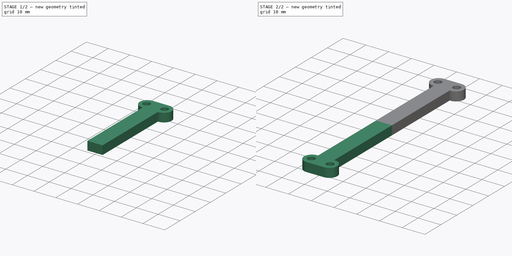
[diagram: build sequence overview — one tinted view per stage of 2, left to right]
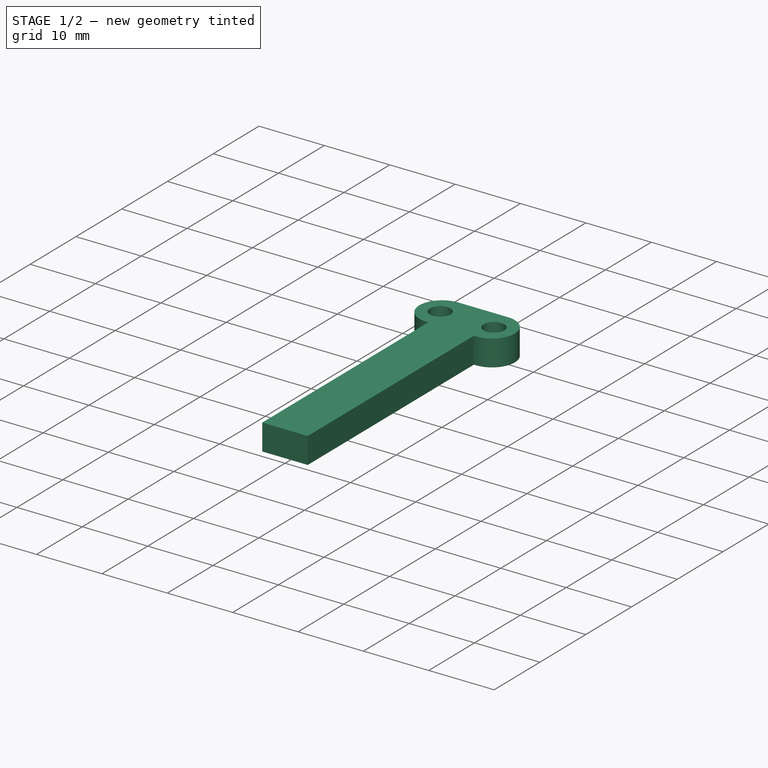
[diagram: stage 1 of 2 — iso view after this stage's code; geometry added in this stage tinted green]
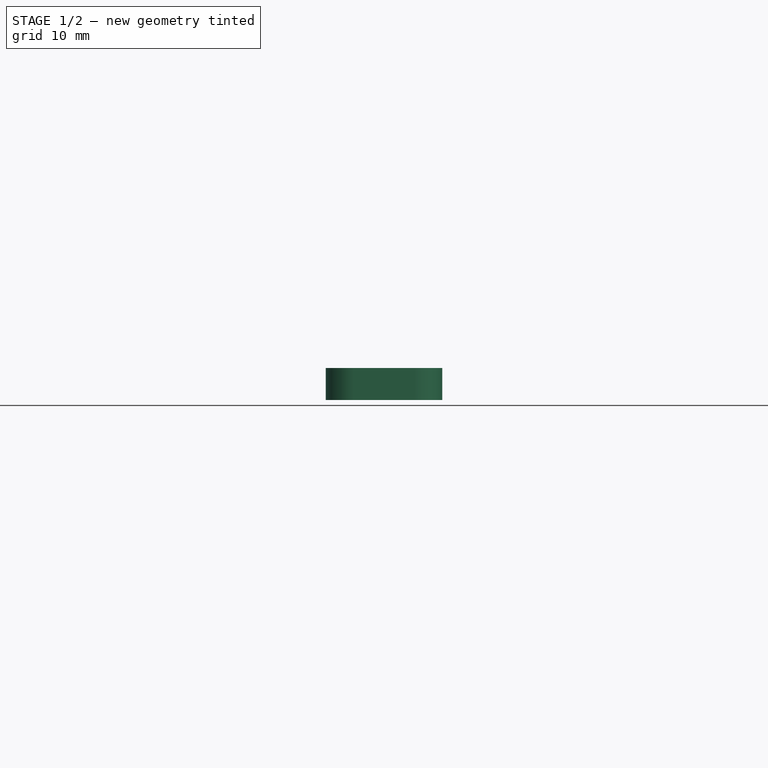
[diagram: stage 1 of 2 — front view after this stage's code; geometry added in this stage tinted green]
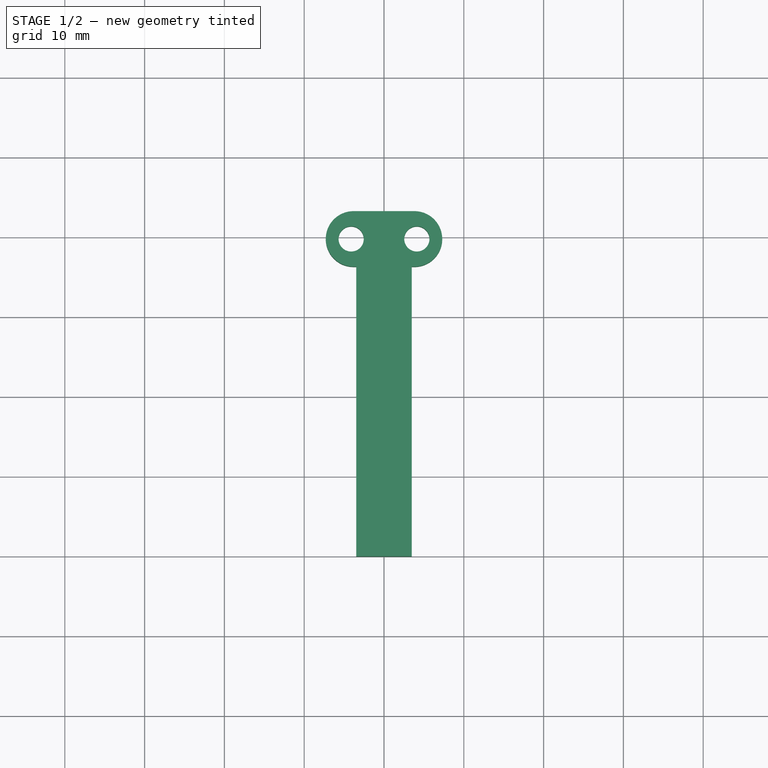
[diagram: stage 1 of 2 — top view after this stage's code; geometry added in this stage tinted green]
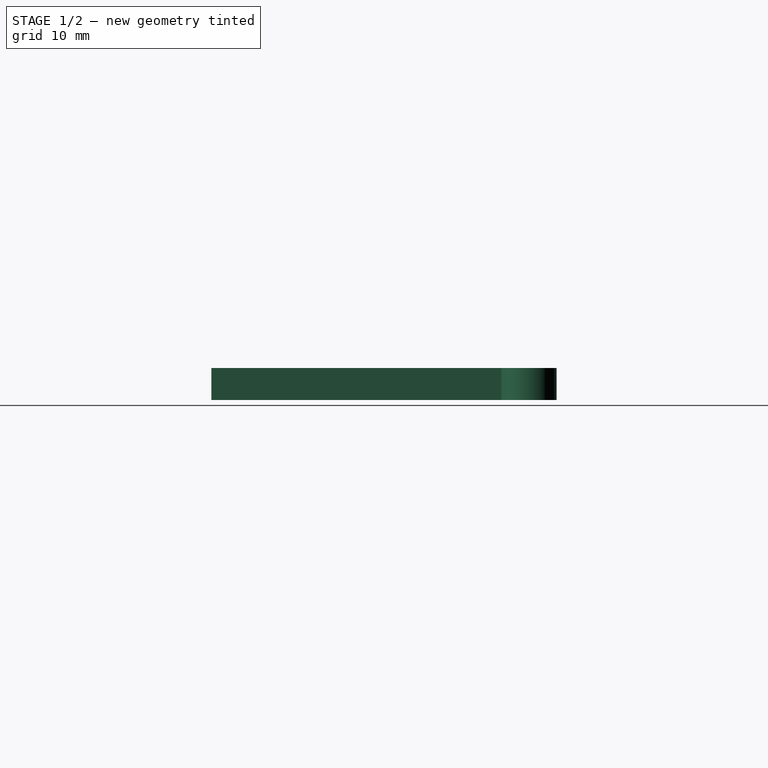
[diagram: stage 1 of 2 — right view after this stage's code; geometry added in this stage tinted green]
FCSTD DOCUMENT  (FreeCAD 0.20R29177 +426 (Git))
Label: stick_key
License: All rights reserved
LicenseURL: http://en.wikipedia.org/wiki/All_rights_reserved
objects: Sketcher::SketchObject×1, Spreadsheet::Sheet×1, PartDesign::Pad×1, PartDesign::Mirrored×1, PartDesign::Body×1
note: 5 computed .brp shape members not serialized (recipe doc carries the construction recipe); baked Part::Feature solids carry a one-line shape summary decoded from their .brp
EXTERNAL_REF file=l_long_stick.FCStd obj=Sketch004
EXTERNAL_REF file=l_long_stick.FCStd obj=Spreadsheet

FEATURE [Sketcher::SketchObject] Sketch
  FullyConstrained = true
  MapMode = 5
  Support = -> [XY_Plane]
  expr: Constraints[32] = <<l_long_stick>>#<<Sketch004>>.Constraints.stick_tall + <<key_data>>.key_space / 2
  expr: Constraints[33] = <<l_long_stick>>#<<Sketch004>>.Constraints.stick_pad_xlen
  expr: Constraints[34] = <<l_long_stick>>#<<Sketch004>>.Constraints.stick_xlen_thick - <<key_data>>.key_space
  expr: Constraints[35] = <<l_long_stick>>#<<Sketch004>>.Constraints.base_ylen - <<key_data>>.key_space
  expr: Constraints[44] = <<l_long_stick>>#<<Sketch004>>.Constraints.dia
  expr: Constraints[45] = <<key_data>>.key_space / 2
  sketch-geometry (17):
    g0: LineSegment StartX=0 StartY=0 StartZ=0 EndX=-3.48 EndY=0 EndZ=0
    g1: LineSegment StartX=0 StartY=0 StartZ=0 EndX=3.48 EndY=0 EndZ=0
    g2: LineSegment StartX=-3.48 StartY=0 StartZ=0 EndX=-3.48 EndY=36.3 EndZ=0
    g3: LineSegment StartX=-3.48 StartY=36.3 StartZ=0 EndX=-3.81555 EndY=36.3 EndZ=0
    g4: LineSegment StartX=3.48 StartY=0 StartZ=0 EndX=3.48 EndY=36.3 EndZ=0
    g5: LineSegment StartX=3.48 StartY=36.3 StartZ=0 EndX=3.81555 EndY=36.3 EndZ=0
    g6: LineSegment StartX=-3.48 StartY=36.3 StartZ=0 EndX=3.48 EndY=36.3 EndZ=0
    g7: ArcOfCircle CenterX=-3.81555 CenterY=39.78 CenterZ=0 NormalX=0 NormalY=0 NormalZ=1 AngleXU=0 Radius=3.48 StartAngle=1.5708 EndAngle=4.71239
    g8: ArcOfCircle CenterX=3.81555 CenterY=39.78 CenterZ=0 NormalX=0 NormalY=0 NormalZ=1 AngleXU=0 Radius=3.48 StartAngle=4.71239 EndAngle=7.85398
    g9: LineSegment StartX=-3.81555 StartY=43.26 StartZ=0 EndX=3.81555 EndY=43.26 EndZ=0
    g10: LineSegment StartX=-3.81555 StartY=36.3 StartZ=0 EndX=-3.81555 EndY=43.26 EndZ=0
    g11: LineSegment StartX=3.81555 StartY=43.26 StartZ=0 EndX=3.81555 EndY=36.3 EndZ=0
    g12: LineSegment StartX=-3.48 StartY=0 StartZ=0 EndX=3.48 EndY=0 EndZ=0
    g13: LineSegment StartX=-3.81555 StartY=39.78 StartZ=0 EndX=-4.11555 EndY=39.78 EndZ=0
    g14: LineSegment StartX=3.81555 StartY=39.78 StartZ=0 EndX=4.11555 EndY=39.78 EndZ=0
    g15: Circle CenterX=-4.11555 CenterY=39.78 CenterZ=0 NormalX=0 NormalY=0 NormalZ=1 AngleXU=0 Radius=1.58
    g16: Circle CenterX=4.11555 CenterY=39.78 CenterZ=0 NormalX=0 NormalY=0 NormalZ=1 AngleXU=0 Radius=1.58
  constraints (46):
    c: Coincident(g0,g-1)
    c: PointOnObject(g0,g-1)
    c: Coincident(g1,g0)
    c: PointOnObject(g1,g-1)
    c: Equal(g1,g0)
    c: Coincident(g0,g2)
    c: Vertical(g2)
    c: Coincident(g2,g3)
    c: Horizontal(g3)
    c: Coincident(g1,g4)
    c: Vertical(g4)
    c: Coincident(g4,g5)
    c: Horizontal(g5)
    c: Coincident(g6,g2)
    c: Coincident(g6,g4)
    c: Horizontal(g6)
    c: Equal(g5,g3)
    c: Coincident(g7,g3)
    c: Coincident(g8,g5)
    c: Coincident(g9,g7)
    c: Coincident(g9,g8)
    c: Horizontal(g9)
    c: Coincident(g10,g3)
    c: Coincident(g10,g7)
    c: Coincident(g11,g8)
    c: Coincident(g11,g5)
    c: Vertical(g11)
    c: PointOnObject(g8,g11)
    c: PointOnObject(g7,g10)
    c: Vertical(g10)
    c: Coincident(g12,g2)
    c: Coincident(g12,g4)
    c: DistanceY(g2,g2) = 36.3
    c: DistanceX(g3,g3) = 0.33555
    c: DistanceX(g12,g12) = 6.96
    c: DistanceY(g11,g11) = 6.96
    c: Coincident(g13,g7)
    c: Horizontal(g13)
    c: Coincident(g14,g8)
    c: Horizontal(g14)
    c: Equal(g14,g13)
    c: Coincident(g15,g13)
    c: Coincident(g16,g14)
    c: Equal(g16,g15)
    c: Diameter(g15) = 3.16
    c: DistanceX(g13,g13) = 0.3
FEATURE [Spreadsheet::Sheet] Spreadsheet  label="key_data"
  cells = A1=Name; B1=Value; A2=key_space; B2(key_space)==0.6mm
FEATURE [PartDesign::Pad] Pad
  Direction = (0,0,1)
  Length = 4
  Length2 = 10
  Profile = -> Sketch
  ReferenceAxis = -> Sketch [N_Axis]
  Type = 0
  expr: Length = <<l_long_stick>>#<<stick_data>>.stick_tie_thick
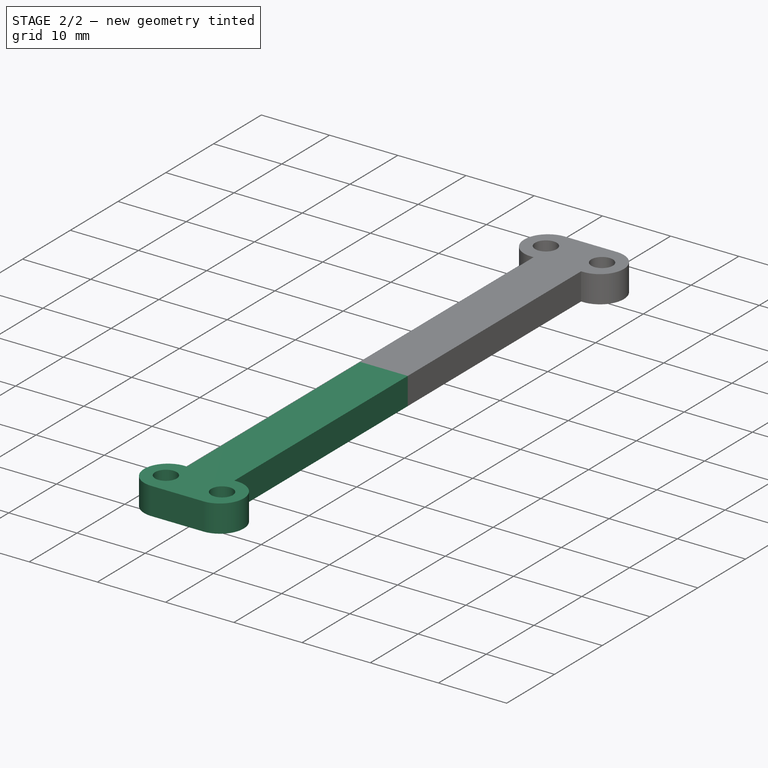
[diagram: stage 2 of 2 — iso view after this stage's code; geometry added in this stage tinted green]
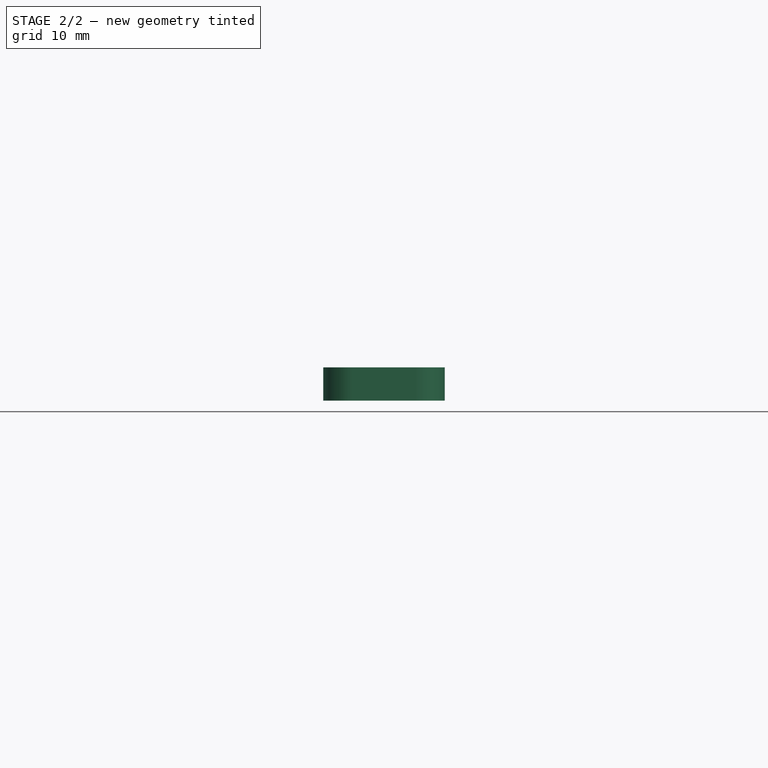
[diagram: stage 2 of 2 — front view after this stage's code; geometry added in this stage tinted green]
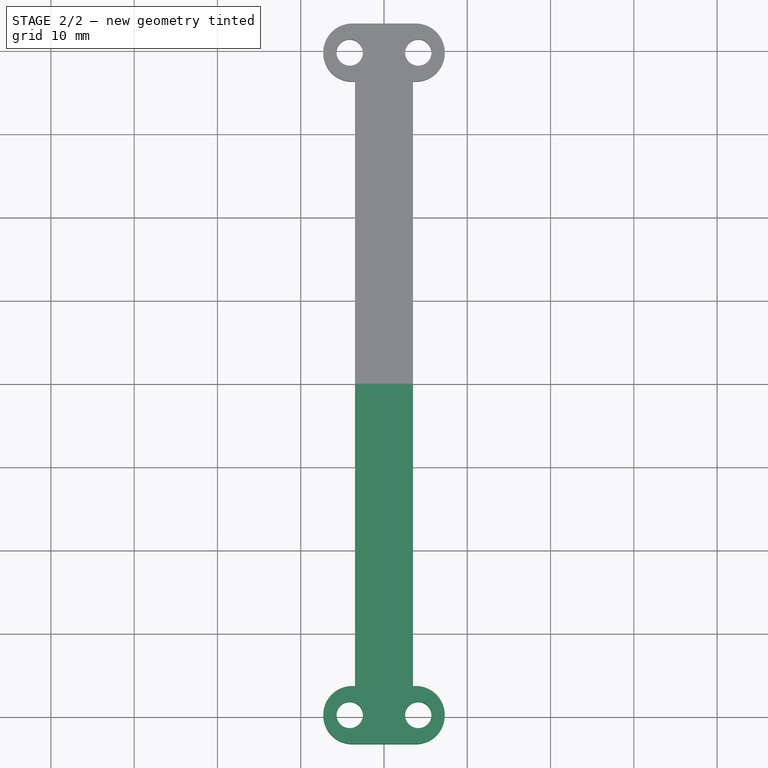
[diagram: stage 2 of 2 — top view after this stage's code; geometry added in this stage tinted green]
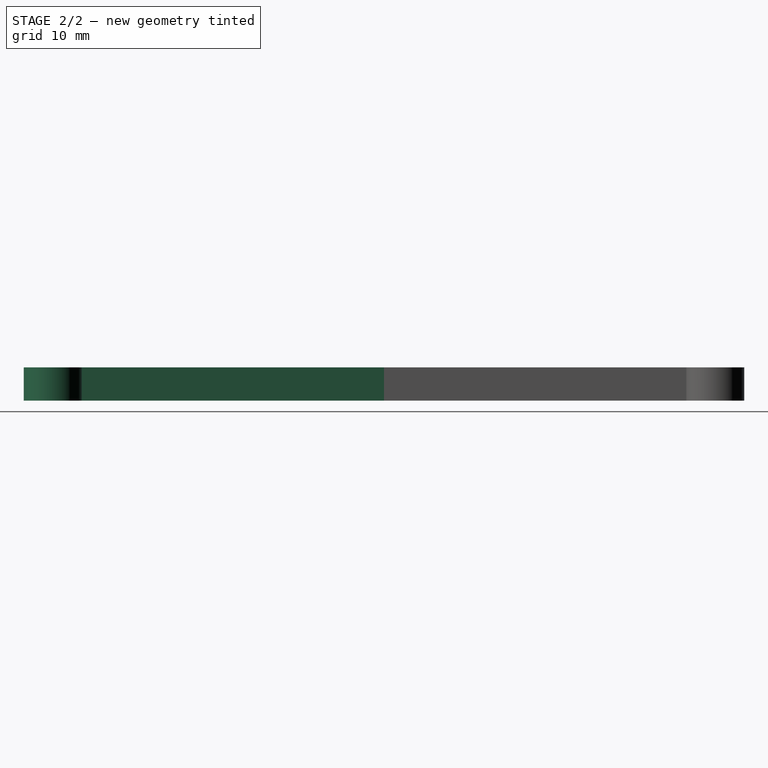
[diagram: stage 2 of 2 — right view after this stage's code; geometry added in this stage tinted green]
FEATURE [PartDesign::Mirrored] Mirrored
  BaseFeature = -> Pad
  MirrorPlane = -> Sketch [H_Axis]
  Originals = -> [Pad]
FEATURE [PartDesign::Body] Body
  Group = -> [Sketch,Pad,Mirrored]
  Origin = -> Origin
  Tip = -> Mirrored
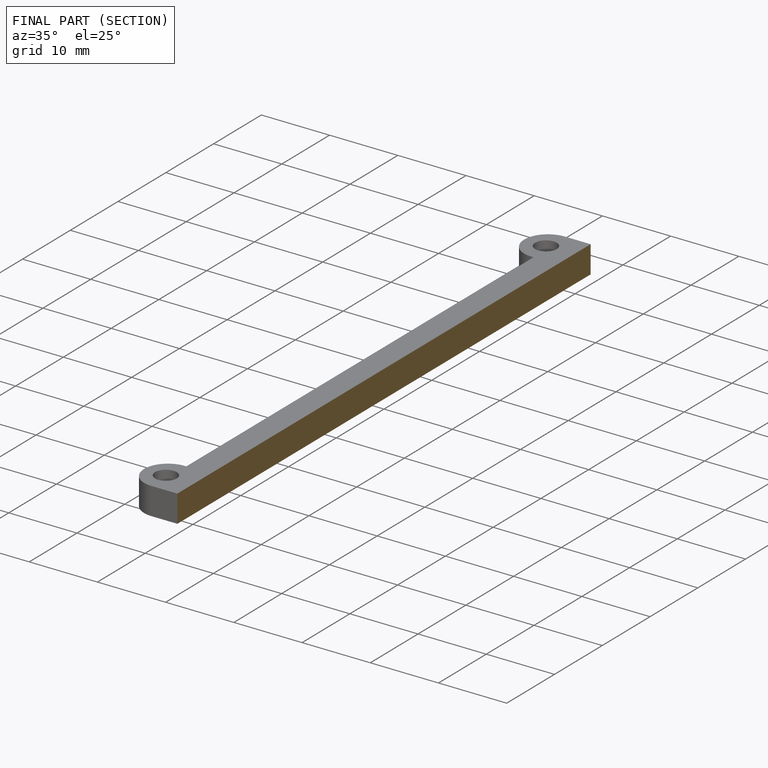
[diagram: finished part — half-section view (interior)]
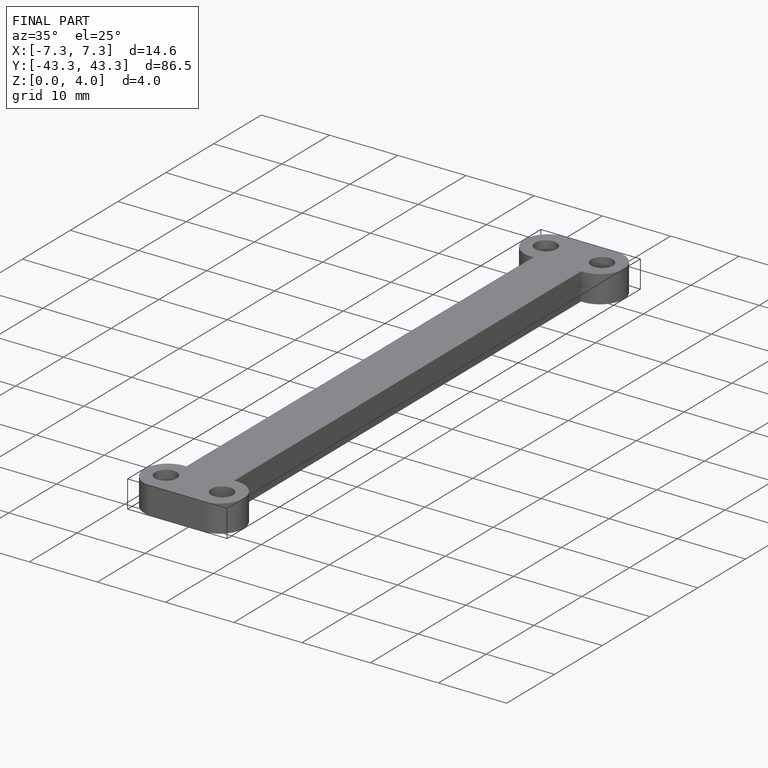
[diagram: finished part — iso view with bounding-box wireframe]
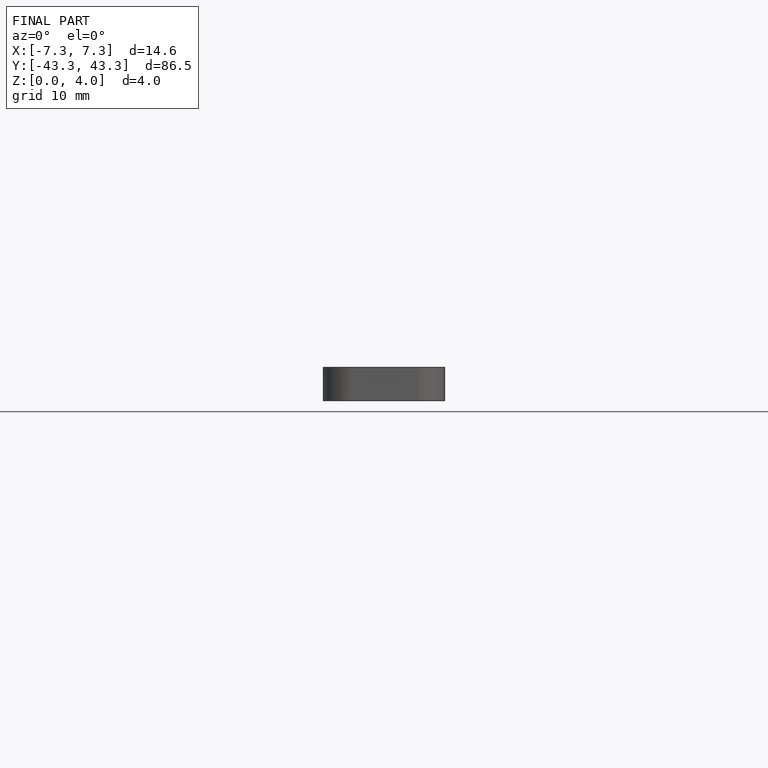
[diagram: finished part — front view with bounding-box wireframe]
